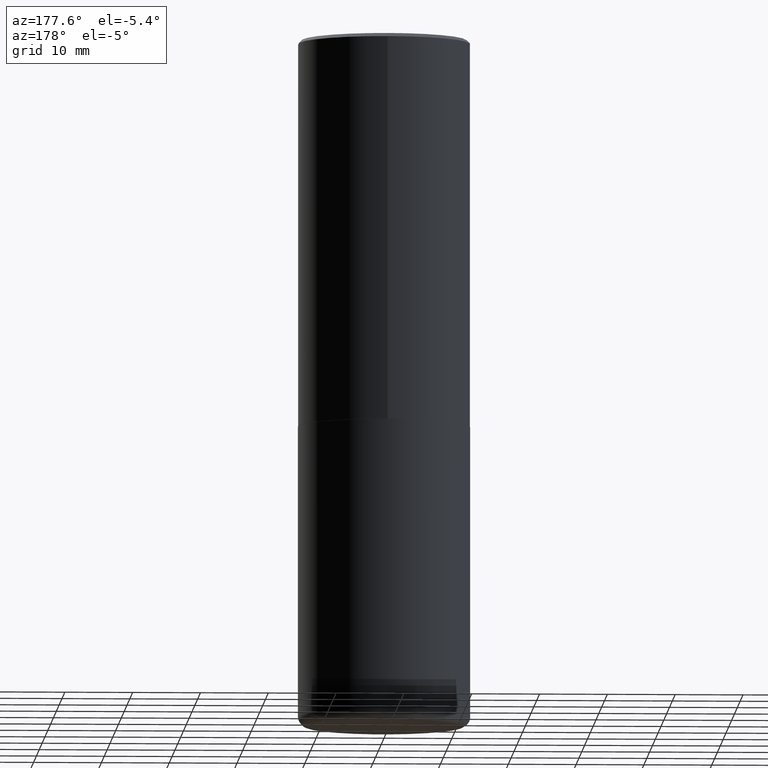
[diagram: clean part render]
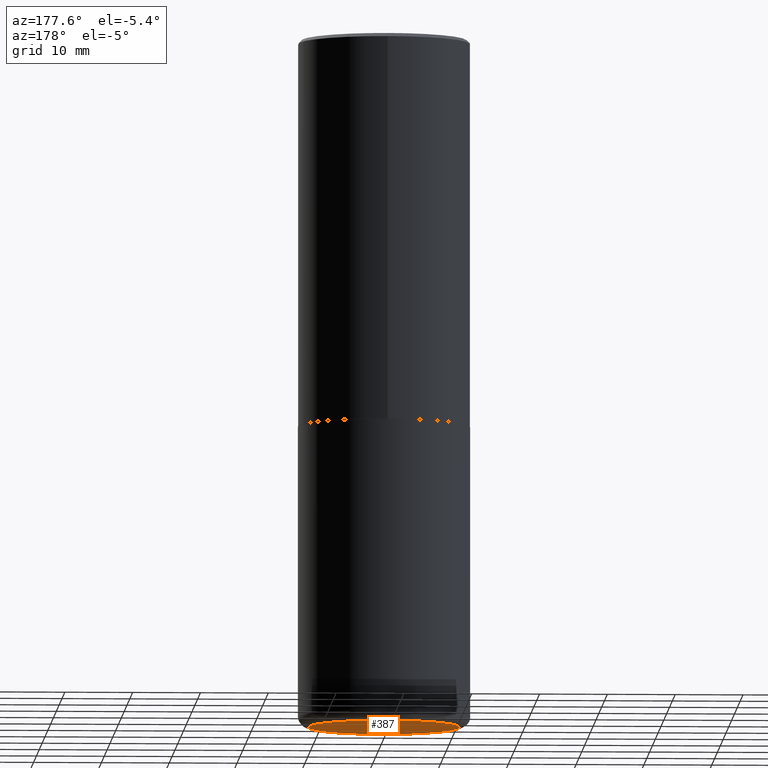
[diagram: same view with one face highlighted and labeled with its STEP entity id]
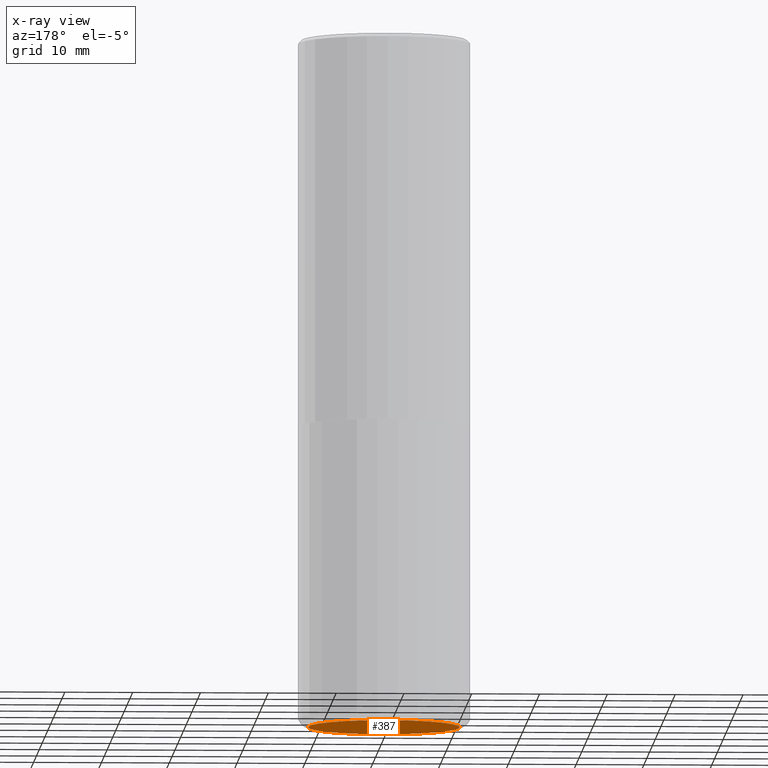
[diagram: x-ray of the same camera — body ghosted, the highlighted face saturated]
A machine part, auxiliary view. The second image highlights one B-rep face of the part: STEP entity #387.
The next image is the same camera in x-ray: the body ghosted, the highlighted face saturated — about 0% of this face is hidden behind the body in this view.
In plain terms, the highlighted planar face has unit normal (0, -0, -1).
Its self-contained STEP definition (entity closure, byte-faithful):
#22 = ORIENTED_EDGE ( 'NONE', *, *, #277, .F. ) ;
#39 = AXIS2_PLACEMENT_3D ( 'NONE', #203, #407, #397 ) ;
#50 = DIRECTION ( 'NONE',  ( 2.438088387897960049E-29, -3.491481338843145188E-15, -1.000000000000000000 ) ) ;
#72 = CIRCLE ( 'NONE', #373, 0.4400000000000000022 ) ;
#102 = CARTESIAN_POINT ( 'NONE',  ( 9.781875224740546387E-29, -1.396592535537258233E-14, -4.000000000000000000 ) ) ;
#108 = CIRCLE ( 'NONE', #39, 0.4400000000000000022 ) ;
#114 = FACE_OUTER_BOUND ( 'NONE', #263, .T. ) ;
#167 = DIRECTION ( 'NONE',  ( -2.445468806185136597E-29, 3.491481338843145583E-15, 1.000000000000000000 ) ) ;
#174 = VERTEX_POINT ( 'NONE', #297 ) ;
#181 = PLANE ( 'NONE',  #355 ) ;
#203 = CARTESIAN_POINT ( 'NONE',  ( 9.781875224740546387E-29, -1.396592535537258233E-14, -4.000000000000000000 ) ) ;
#213 = CARTESIAN_POINT ( 'NONE',  ( 0.4400000000000000022, -1.703842893355454063E-14, -4.000000000000000000 ) ) ;
#263 = EDGE_LOOP ( 'NONE', ( #372, #22 ) ) ;
#277 = EDGE_CURVE ( 'NONE', #174, #418, #72, .T. ) ;
#297 = CARTESIAN_POINT ( 'NONE',  ( -0.4400000000000000022, -1.052163005713481828E-14, -4.000000000000000000 ) ) ;
#305 = DIRECTION ( 'NONE',  ( -1.000000000000000000, 6.982962677686265922E-15, -4.876176775795935793E-29 ) ) ;
#334 = CARTESIAN_POINT ( 'NONE',  ( 9.781875224740546387E-29, -1.396592535537258233E-14, -4.000000000000000000 ) ) ;
#355 = AXIS2_PLACEMENT_3D ( 'NONE', #334, #50, #305 ) ;
#361 = EDGE_CURVE ( 'NONE', #418, #174, #108, .T. ) ;
#372 = ORIENTED_EDGE ( 'NONE', *, *, #361, .F. ) ;
#373 = AXIS2_PLACEMENT_3D ( 'NONE', #102, #167, #391 ) ;
#387 = ADVANCED_FACE ( 'NONE', ( #114 ), #181, .T. ) ;
#391 = DIRECTION ( 'NONE',  ( 1.000000000000000000, -6.982962677686266711E-15, 0.000000000000000000 ) ) ;
#397 = DIRECTION ( 'NONE',  ( 1.000000000000000000, -6.982962677686266711E-15, 0.000000000000000000 ) ) ;
#407 = DIRECTION ( 'NONE',  ( -2.445468806185136597E-29, 3.491481338843145583E-15, 1.000000000000000000 ) ) ;
#418 = VERTEX_POINT ( 'NONE', #213 ) ;